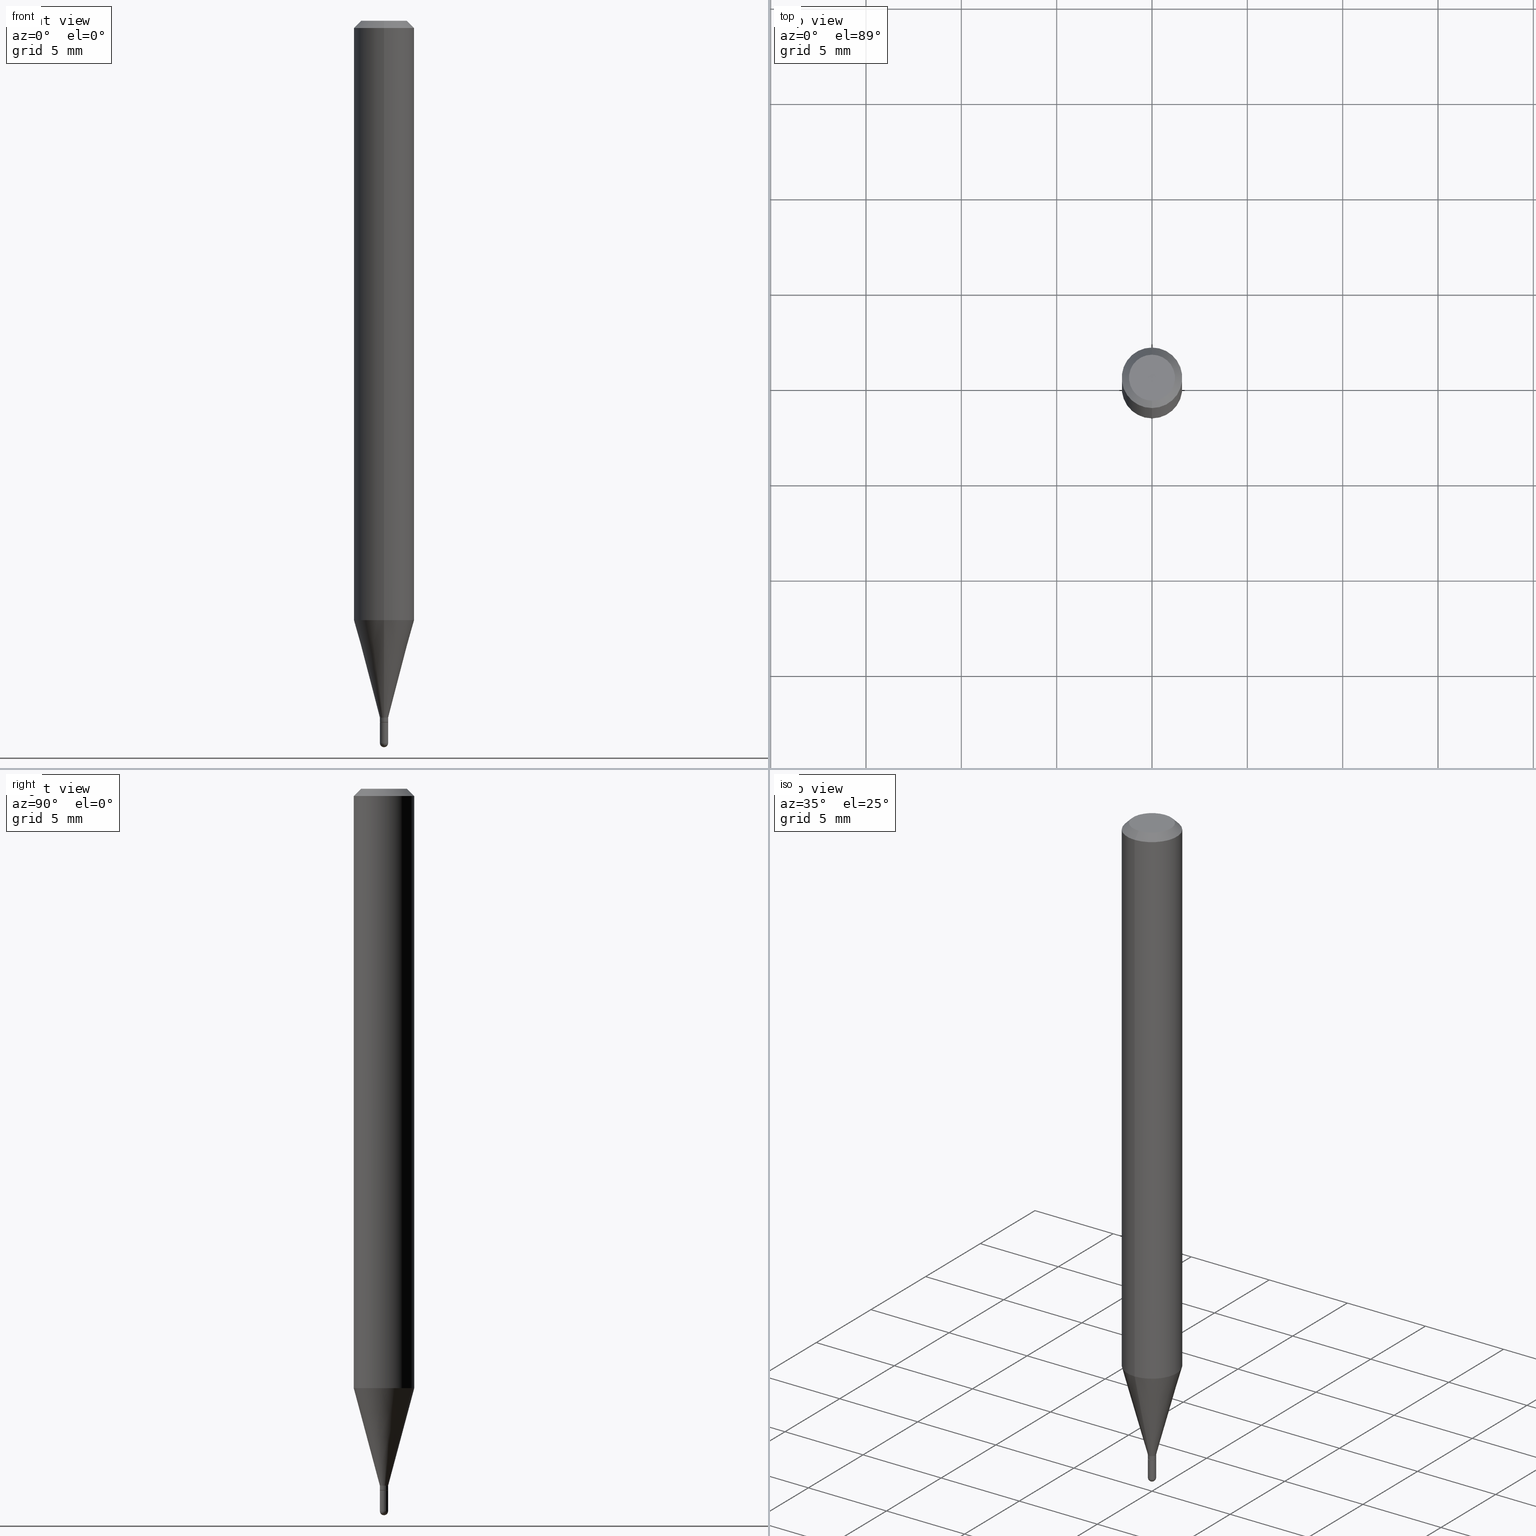
[diagram: canonical four-view strip — front | top / right | iso, engineering-drawing reading convention]
A machine part, canonical four-view strip (front | top / right | iso — engineering-drawing reading convention). The complete STEP part file that produces these views, byte-faithful:
ISO-10303-21;
HEADER;
FILE_DESCRIPTION (( 'STEP AP203' ),
    '1' );
FILE_NAME ('00455.STEP',
    '2024-03-07T17:58:16',
    ( '' ),
    ( '' ),
    'SwSTEP 2.0',
    'SolidWorks 2023',
    '' );
FILE_SCHEMA (( 'CONFIG_CONTROL_DESIGN' ));
ENDSEC;

DATA;
#1 = DIRECTION ( 'NONE',  ( 1.000000000000000000, -6.982962677686273021E-15, 0.000000000000000000 ) ) ;
#2 = FACE_OUTER_BOUND ( 'NONE', #247, .T. ) ;
#3 = EDGE_CURVE ( 'NONE', #413, #62, #56, .T. ) ;
#4 = AXIS2_PLACEMENT_3D ( 'NONE', #403, #445, #324 ) ;
#5 = DIRECTION ( 'NONE',  ( 6.982962677686265922E-15, 1.000000000000000000, 0.000000000000000000 ) ) ;
#6 = VECTOR ( 'NONE', #352, 39.37007874015748143 ) ;
#7 = CARTESIAN_POINT ( 'NONE',  ( 3.668199331857008749E-31, -5.237227560951850416E-17, -0.01500000000000000812 ) ) ;
#8 = DIRECTION ( 'NONE',  ( 1.000000000000000000, -6.982962677686265922E-15, 4.876176775795935232E-29 ) ) ;
#9 = DIRECTION ( 'NONE',  ( -2.445466221238004256E-29, 3.491485040634565202E-15, 1.000000000000000000 ) ) ;
#10 = SECURITY_CLASSIFICATION ( '', '', #507 ) ;
#11 = CYLINDRICAL_SURFACE ( 'NONE', #224, 0.008499999999999924283 ) ;
#12 = ORIENTED_EDGE ( 'NONE', *, *, #476, .T. ) ;
#13 = CARTESIAN_POINT ( 'NONE',  ( -5.935518276029754545E-17, -0.008500000000004949777, -1.439000000000000057 ) ) ;
#14 = CIRCLE ( 'NONE', #309, 0.008499999999999964181 ) ;
#15 = ORIENTED_EDGE ( 'NONE', *, *, #80, .T. ) ;
#16 = FACE_OUTER_BOUND ( 'NONE', #279, .T. ) ;
#17 = EDGE_LOOP ( 'NONE', ( #333, #51, #376, #87 ) ) ;
#18 = AXIS2_PLACEMENT_3D ( 'NONE', #292, #449, #201 ) ;
#19 = VERTEX_POINT ( 'NONE', #31 ) ;
#20 = DIRECTION ( 'NONE',  ( 1.839019923739601893E-15, 0.2588190451025252359, 0.9659258262890670910 ) ) ;
#21 = ORIENTED_EDGE ( 'NONE', *, *, #307, .T. ) ;
#22 = DIRECTION ( 'NONE',  ( -6.982962677686265922E-15, -1.000000000000000000, 4.370956789862821150E-15 ) ) ;
#23 = VERTEX_POINT ( 'NONE', #34 ) ;
#24 = DIRECTION ( 'NONE',  ( 1.000000000000000000, -6.982962677686273021E-15, 0.000000000000000000 ) ) ;
#25 = DATE_AND_TIME ( #186, #193 ) ;
#26 = EDGE_CURVE ( 'NONE', #489, #290, #323, .T. ) ;
#27 = CARTESIAN_POINT ( 'NONE',  ( 3.543480554573868941E-29, -5.059161823879485818E-15, -1.449000000000000066 ) ) ;
#28 = DIRECTION ( 'NONE',  ( 1.000000000000000000, 0.000000000000000000, 0.000000000000000000 ) ) ;
#29 = VECTOR ( 'NONE', #397, 39.37007874015748143 ) ;
#30 = CC_DESIGN_PERSON_AND_ORGANIZATION_ASSIGNMENT ( #346, #306, ( #390 ) ) ;
#31 = CARTESIAN_POINT ( 'NONE',  ( 0.008500000000000000611, -5.118511642744051990E-15, -1.449000000000000066 ) ) ;
#32 = EDGE_CURVE ( 'NONE', #132, #339, #359, .T. ) ;
#33 = ORIENTED_EDGE ( 'NONE', *, *, #463, .T. ) ;
#34 = CARTESIAN_POINT ( 'NONE',  ( -5.935518276029752079E-17, -0.008500000000005010492, -1.448500000000000121 ) ) ;
#35 = MECHANICAL_CONTEXT ( 'NONE', #440, 'mechanical' ) ;
#36 = COORDINATED_UNIVERSAL_TIME_OFFSET ( 5, 0, .BEHIND. ) ;
#37 = CC_DESIGN_APPROVAL ( #281, ( #319 ) ) ;
#38 = CARTESIAN_POINT ( 'NONE',  ( 3.668199331857008749E-31, -5.237227560951850416E-17, -0.01500000000000000812 ) ) ;
#39 = ADVANCED_BREP_SHAPE_REPRESENTATION ( '00455', ( #313, #137, #334 ), #457 ) ;
#40 = DIRECTION ( 'NONE',  ( 2.445466221238004256E-29, -3.491485040634565202E-15, -1.000000000000000000 ) ) ;
#41 = AXIS2_PLACEMENT_3D ( 'NONE', #415, #426, #383 ) ;
#42 = ADVANCED_FACE ( 'NONE', ( #138 ), #453, .F. ) ;
#43 = CARTESIAN_POINT ( 'NONE',  ( 3.543480554573868941E-29, -5.059161823879485818E-15, -1.449000000000000066 ) ) ;
#44 = CC_DESIGN_PERSON_AND_ORGANIZATION_ASSIGNMENT ( #218, #380, ( #10 ) ) ;
#45 = ADVANCED_FACE ( 'NONE', ( #377 ), #458, .T. ) ;
#46 = CARTESIAN_POINT ( 'NONE',  ( 3.647416724425131194E-29, -5.207544416884551827E-15, -1.491500000000000270 ) ) ;
#47 = SPHERICAL_SURFACE ( 'NONE', #363, 0.008499999999999964181 ) ;
#48 = LINE ( 'NONE', #442, #325 ) ;
#49 = CARTESIAN_POINT ( 'NONE',  ( 3.668199331857008749E-31, -5.237227560951850416E-17, -0.01500000000000000812 ) ) ;
#50 = AXIS2_PLACEMENT_3D ( 'NONE', #503, #65, #460 ) ;
#51 = ORIENTED_EDGE ( 'NONE', *, *, #239, .T. ) ;
#52 = CARTESIAN_POINT ( 'NONE',  ( -6.039613253957192439E-17, -0.008500000000005190903, -1.491500000000000270 ) ) ;
#53 = ORIENTED_EDGE ( 'NONE', *, *, #58, .F. ) ;
#54 = UNCERTAINTY_MEASURE_WITH_UNIT (LENGTH_MEASURE( 1.000000000000000082E-05 ), #500, 'distance_accuracy_value', 'NONE');
#55 = FACE_OUTER_BOUND ( 'NONE', #17, .T. ) ;
#56 = CIRCLE ( 'NONE', #41, 0.008499999999999924283 ) ;
#57 = ORIENTED_EDGE ( 'NONE', *, *, #478, .F. ) ;
#58 = EDGE_CURVE ( 'NONE', #132, #375, #244, .T. ) ;
#59 = ORIENTED_EDGE ( 'NONE', *, *, #58, .T. ) ;
#60 = PLANE ( 'NONE',  #407 ) ;
#61 = EDGE_CURVE ( 'NONE', #381, #253, #474, .T. ) ;
#62 = VERTEX_POINT ( 'NONE', #90 ) ;
#63 = CIRCLE ( 'NONE', #372, 0.008000000000000000167 ) ;
#64 = ORIENTED_EDGE ( 'NONE', *, *, #298, .T. ) ;
#65 = DIRECTION ( 'NONE',  ( -2.445466221238004256E-29, 3.491485040634565202E-15, 1.000000000000000000 ) ) ;
#66 = CALENDAR_DATE ( 2024, 7, 3 ) ;
#67 = EDGE_CURVE ( 'NONE', #245, #19, #414, .T. ) ;
#68 = CARTESIAN_POINT ( 'NONE',  ( 6.039613253964316839E-17, 0.008499999999994900524, -1.439000000000000057 ) ) ;
#69 = CIRCLE ( 'NONE', #392, 0.008499999999999924283 ) ;
#70 = ORIENTED_EDGE ( 'NONE', *, *, #255, .T. ) ;
#71 = CALENDAR_DATE ( 2024, 7, 3 ) ;
#72 = VECTOR ( 'NONE', #304, 39.37007874015748143 ) ;
#73 = PERSON_AND_ORGANIZATION ( #111, #418 ) ;
#74 = FACE_OUTER_BOUND ( 'NONE', #385, .T. ) ;
#75 = CIRCLE ( 'NONE', #187, 0.008499999999999924283 ) ;
#76 = AXIS2_PLACEMENT_3D ( 'NONE', #196, #439, #396 ) ;
#77 = FACE_OUTER_BOUND ( 'NONE', #336, .T. ) ;
#78 = CARTESIAN_POINT ( 'NONE',  ( 3.543480554573868941E-29, -5.059161823879485818E-15, -1.449000000000000066 ) ) ;
#79 = EDGE_CURVE ( 'NONE', #347, #496, #219, .T. ) ;
#80 = EDGE_CURVE ( 'NONE', #62, #413, #69, .T. ) ;
#81 = DIRECTION ( 'NONE',  ( 2.445466221238004256E-29, -3.491485040634565202E-15, -1.000000000000000000 ) ) ;
#82 = CIRCLE ( 'NONE', #356, 0.008500000000000002345 ) ;
#83 = CARTESIAN_POINT ( 'NONE',  ( 3.646689833079329078E-29, -5.208585366663827303E-15, -1.491500000000000270 ) ) ;
#84 = LOCAL_TIME ( 12, 58, 16.00000000000000000, #483 ) ;
#85 = PLANE ( 'NONE',  #18 ) ;
#86 = DIRECTION ( 'NONE',  ( -2.445466221238004256E-29, 3.491485040634565202E-15, 1.000000000000000000 ) ) ;
#87 = ORIENTED_EDGE ( 'NONE', *, *, #166, .F. ) ;
#88 = DIRECTION ( 'NONE',  ( -6.982962677686266711E-15, -1.000000000000000000, 0.000000000000000000 ) ) ;
#89 = ORIENTED_EDGE ( 'NONE', *, *, #79, .F. ) ;
#90 = CARTESIAN_POINT ( 'NONE',  ( -5.935518276029754545E-17, -0.008500000000004949777, -1.439000000000000057 ) ) ;
#91 = CARTESIAN_POINT ( 'NONE',  ( 6.039613253964319304E-17, 0.008499999999994839808, -1.448500000000000121 ) ) ;
#92 = AXIS2_PLACEMENT_3D ( 'NONE', #484, #121, #8 ) ;
#93 = ORIENTED_EDGE ( 'NONE', *, *, #485, .F. ) ;
#94 = DIRECTION ( 'NONE',  ( -2.445466221238004256E-29, 3.491485040634565202E-15, 1.000000000000000000 ) ) ;
#95 = ORIENTED_EDGE ( 'NONE', *, *, #411, .T. ) ;
#96 = APPROVAL ( #477, 'UNSPECIFIED' ) ;
#97 = ADVANCED_FACE ( 'NONE', ( #284 ), #233, .T. ) ;
#98 = DIRECTION ( 'NONE',  ( -4.851104656540964275E-15, -0.7071067811865500152, -0.7071067811865450192 ) ) ;
#99 = EDGE_LOOP ( 'NONE', ( #424, #168 ) ) ;
#100 = ORIENTED_EDGE ( 'NONE', *, *, #269, .F. ) ;
#101 = CARTESIAN_POINT ( 'NONE',  ( -3.773273898774340269E-16, -0.04749999999999999362, 1.569853956734031529E-16 ) ) ;
#102 =( NAMED_UNIT ( * ) PLANE_ANGLE_UNIT ( ) SI_UNIT ( $, .RADIAN. ) );
#103 = LOCAL_TIME ( 12, 58, 16.00000000000000000, #36 ) ;
#104 = CARTESIAN_POINT ( 'NONE',  ( 0.000000000000000000, 0.000000000000000000, 0.000000000000000000 ) ) ;
#105 = EDGE_LOOP ( 'NONE', ( #402, #145, #155, #297 ) ) ;
#106 = DIRECTION ( 'NONE',  ( -2.445466221238004256E-29, 3.491485040634565202E-15, 1.000000000000000000 ) ) ;
#107 =( NAMED_UNIT ( * ) SI_UNIT ( $, .STERADIAN. ) SOLID_ANGLE_UNIT ( ) );
#108 = AXIS2_PLACEMENT_3D ( 'NONE', #248, #151, #475 ) ;
#109 = DATE_AND_TIME ( #510, #305 ) ;
#110 = CC_DESIGN_APPROVAL ( #131, ( #390 ) ) ;
#111 = PERSON ( 'UNSPECIFIED', 'UNSPECIFIED', 'UNSPECIFIED', ('UNSPECIFIED'), ('UNSPECIFIED'), ('UNSPECIFIED') ) ;
#112 = CC_DESIGN_DATE_AND_TIME_ASSIGNMENT ( #109, #461, ( #10 ) ) ;
#113 = DIRECTION ( 'NONE',  ( -2.445466221238004536E-29, 3.491485040634565202E-15, 1.000000000000000000 ) ) ;
#114 = AXIS2_PLACEMENT_3D ( 'NONE', #295, #291, #254 ) ;
#115 = CARTESIAN_POINT ( 'NONE',  ( 3.519025892361488226E-29, -5.024246973473140091E-15, -1.439000000000000057 ) ) ;
#116 = CARTESIAN_POINT ( 'NONE',  ( -4.364351673553912750E-16, -0.06250000000000005551, -0.01499999999999979128 ) ) ;
#117 = ORIENTED_EDGE ( 'NONE', *, *, #32, .T. ) ;
#118 = FACE_OUTER_BOUND ( 'NONE', #365, .T. ) ;
#119 = DIRECTION ( 'NONE',  ( -2.445468806185136597E-29, 3.491481338843145583E-15, 1.000000000000000000 ) ) ;
#120 = AXIS2_PLACEMENT_3D ( 'NONE', #167, #252, #326 ) ;
#121 = DIRECTION ( 'NONE',  ( -2.445468806185136597E-29, 3.491481338843145583E-15, 1.000000000000000000 ) ) ;
#122 = CALENDAR_DATE ( 2024, 7, 3 ) ;
#123 = CARTESIAN_POINT ( 'NONE',  ( 3.840629472727447874E-16, 0.04749999999999999362, -1.747056831868805383E-16 ) ) ;
#124 = ORIENTED_EDGE ( 'NONE', *, *, #505, .T. ) ;
#125 = DATE_AND_TIME ( #122, #84 ) ;
#126 = AXIS2_PLACEMENT_3D ( 'NONE', #104, #86, #173 ) ;
#127 = DIRECTION ( 'NONE',  ( -6.982962677686266711E-15, -1.000000000000000000, 3.491485040634565991E-15 ) ) ;
#128 = ORIENTED_EDGE ( 'NONE', *, *, #149, .T. ) ;
#129 = CARTESIAN_POINT ( 'NONE',  ( 4.440892098500927901E-16, 0.06249999999999569095, -1.237469256391281691 ) ) ;
#130 = AXIS2_PLACEMENT_3D ( 'NONE', #499, #183, #429 ) ;
#131 = APPROVAL ( #465, 'UNSPECIFIED' ) ;
#132 = VERTEX_POINT ( 'NONE', #230 ) ;
#133 = EDGE_CURVE ( 'NONE', #347, #381, #472, .T. ) ;
#134 = ORIENTED_EDGE ( 'NONE', *, *, #133, .F. ) ;
#135 = CARTESIAN_POINT ( 'NONE',  ( -4.287811248607203282E-16, -0.06250000000000005551, -0.01499999999999979128 ) ) ;
#136 = EDGE_LOOP ( 'NONE', ( #15, #33, #409, #481 ) ) ;
#137 = MANIFOLD_SOLID_BREP ( 'Body-Move/Copy2[2]', #181 ) ;
#138 = FACE_OUTER_BOUND ( 'NONE', #502, .T. ) ;
#139 = ORIENTED_EDGE ( 'NONE', *, *, #354, .F. ) ;
#140 = DIRECTION ( 'NONE',  ( -2.445468806185136597E-29, 3.491481338843145583E-15, 1.000000000000000000 ) ) ;
#141 = PERSON_AND_ORGANIZATION ( #111, #418 ) ;
#142 = FACE_OUTER_BOUND ( 'NONE', #308, .T. ) ;
#143 = PERSON_AND_ORGANIZATION ( #111, #418 ) ;
#144 = AXIS2_PLACEMENT_3D ( 'NONE', #154, #197, #433 ) ;
#145 = ORIENTED_EDGE ( 'NONE', *, *, #387, .T. ) ;
#146 = DIRECTION ( 'NONE',  ( -7.105427357601000281E-15, -1.000000000000000000, 0.000000000000000000 ) ) ;
#147 = COORDINATED_UNIVERSAL_TIME_OFFSET ( 5, 0, .BEHIND. ) ;
#148 = COORDINATED_UNIVERSAL_TIME_OFFSET ( 5, 0, .BEHIND. ) ;
#149 = EDGE_CURVE ( 'NONE', #206, #256, #14, .T. ) ;
#150 = CIRCLE ( 'NONE', #130, 0.008500000000000000611 ) ;
#151 = DIRECTION ( 'NONE',  ( -2.445466221238004256E-29, 3.491485040634565202E-15, 1.000000000000000000 ) ) ;
#152 = DIRECTION ( 'NONE',  ( 4.937700262164548042E-15, 0.7071067811865451302, -0.7071067811865499042 ) ) ;
#153 = VECTOR ( 'NONE', #401, 39.37007874015748143 ) ;
#154 = CARTESIAN_POINT ( 'NONE',  ( 3.646689833079329078E-29, -5.208585366663827303E-15, -1.491500000000000270 ) ) ;
#155 = ORIENTED_EDGE ( 'NONE', *, *, #428, .T. ) ;
#156 = DIRECTION ( 'NONE',  ( -6.982962677686266711E-15, -1.000000000000000000, 0.000000000000000000 ) ) ;
#157 = SHAPE_DEFINITION_REPRESENTATION ( #314, #39 ) ;
#158 = DIRECTION ( 'NONE',  ( 6.982962677686265922E-15, 1.000000000000000000, -3.483106191921935554E-15 ) ) ;
#159 = CONICAL_SURFACE ( 'NONE', #399, 0.06250000000000000000, 0.7853981633974483900 ) ;
#160 = EDGE_CURVE ( 'NONE', #245, #256, #280, .T. ) ;
#161 = DIRECTION ( 'NONE',  ( -2.445466221238004256E-29, 3.491485040634565202E-15, 1.000000000000000000 ) ) ;
#162 = ADVANCED_FACE ( 'NONE', ( #2 ), #232, .T. ) ;
#163 = APPROVAL_PERSON_ORGANIZATION ( #141, #131, #456 ) ;
#164 = ORIENTED_EDGE ( 'NONE', *, *, #166, .T. ) ;
#165 = LINE ( 'NONE', #135, #188 ) ;
#166 = EDGE_CURVE ( 'NONE', #489, #253, #277, .T. ) ;
#167 = CARTESIAN_POINT ( 'NONE',  ( 3.543484300162263247E-29, -5.059156459983718502E-15, -1.449000000000000066 ) ) ;
#168 = ORIENTED_EDGE ( 'NONE', *, *, #269, .T. ) ;
#169 = CONICAL_SURFACE ( 'NONE', #431, 0.06250000000000000000, 0.7853981633974483900 ) ;
#170 = ADVANCED_FACE ( 'NONE', ( #357 ), #47, .T. ) ;
#171 = FACE_OUTER_BOUND ( 'NONE', #180, .T. ) ;
#172 = ORIENTED_EDGE ( 'NONE', *, *, #160, .F. ) ;
#173 = DIRECTION ( 'NONE',  ( -6.982962677686266711E-15, -1.000000000000000000, 3.491485040634565991E-15 ) ) ;
#174 = ORIENTED_EDGE ( 'NONE', *, *, #239, .F. ) ;
#175 = CARTESIAN_POINT ( 'NONE',  ( -5.586370142145469855E-17, -0.008000000000005060355, -1.449000000000000066 ) ) ;
#176 = CIRCLE ( 'NONE', #501, 0.008499999999999924283 ) ;
#177 = EDGE_LOOP ( 'NONE', ( #258, #210, #367, #57 ) ) ;
#178 = ORIENTED_EDGE ( 'NONE', *, *, #389, .T. ) ;
#179 = CARTESIAN_POINT ( 'NONE',  ( 3.542257821463249204E-29, -5.057416081359168650E-15, -1.448500000000000121 ) ) ;
#180 = EDGE_LOOP ( 'NONE', ( #174, #378, #164, #443 ) ) ;
#181 = CLOSED_SHELL ( 'NONE', ( #294, #262, #238, #370, #278, #227, #299, #226, #321, #425, #162, #45 ) ) ;
#182 = DIRECTION ( 'NONE',  ( -6.982962677686265922E-15, -1.000000000000000000, 3.491485040634565202E-15 ) ) ;
#183 = DIRECTION ( 'NONE',  ( -2.445468806185136597E-29, 3.491481338843145583E-15, 1.000000000000000000 ) ) ;
#184 = ORIENTED_EDGE ( 'NONE', *, *, #428, .F. ) ;
#185 = DIRECTION ( 'NONE',  ( 1.000000000000000000, -6.982962677686273021E-15, 0.000000000000000000 ) ) ;
#186 = CALENDAR_DATE ( 2024, 7, 3 ) ;
#187 = AXIS2_PLACEMENT_3D ( 'NONE', #199, #479, #285 ) ;
#188 = VECTOR ( 'NONE', #98, 39.37007874015748143 ) ;
#189 = ORIENTED_EDGE ( 'NONE', *, *, #405, .F. ) ;
#190 = DATE_AND_TIME ( #66, #103 ) ;
#191 = PERSON_AND_ORGANIZATION ( #111, #418 ) ;
#192 = APPROVAL_ROLE ( '' ) ;
#193 = LOCAL_TIME ( 12, 58, 16.00000000000000000, #148 ) ;
#194 = FACE_OUTER_BOUND ( 'NONE', #177, .T. ) ;
#195 = LINE ( 'NONE', #236, #6 ) ;
#196 = CARTESIAN_POINT ( 'NONE',  ( 3.543480554573868941E-29, -5.059161823879485818E-15, -1.449000000000000066 ) ) ;
#197 = DIRECTION ( 'NONE',  ( -1.000000000000000000, 6.982962677686265922E-15, -4.883557194083112340E-29 ) ) ;
#198 = CC_DESIGN_PERSON_AND_ORGANIZATION_ASSIGNMENT ( #143, #266, ( #390 ) ) ;
#199 = CARTESIAN_POINT ( 'NONE',  ( 3.542257821463249204E-29, -5.057416081359168650E-15, -1.448500000000000121 ) ) ;
#200 = ADVANCED_FACE ( 'NONE', ( #274 ), #434, .T. ) ;
#201 = DIRECTION ( 'NONE',  ( 6.982962677686265922E-15, 1.000000000000000000, -3.491485040634565202E-15 ) ) ;
#202 = AXIS2_PLACEMENT_3D ( 'NONE', #344, #140, #185 ) ;
#203 = DIRECTION ( 'NONE',  ( -1.807323732225331717E-15, -0.2588190451025184080, 0.9659258262890689783 ) ) ;
#204 = ORIENTED_EDGE ( 'NONE', *, *, #389, .F. ) ;
#205 = DIRECTION ( 'NONE',  ( -2.445466221238004256E-29, 3.491485040634565202E-15, 1.000000000000000000 ) ) ;
#206 = VERTEX_POINT ( 'NONE', #470 ) ;
#207 = CARTESIAN_POINT ( 'NONE',  ( 3.543480554573868941E-29, -5.059161823879485818E-15, -1.449000000000000066 ) ) ;
#208 = ORIENTED_EDGE ( 'NONE', *, *, #505, .F. ) ;
#209 = CARTESIAN_POINT ( 'NONE',  ( 0.008500000000000002345, -5.935518276033327838E-17, 4.144750259426545879E-31 ) ) ;
#210 = ORIENTED_EDGE ( 'NONE', *, *, #3, .T. ) ;
#211 = CARTESIAN_POINT ( 'NONE',  ( 3.026189266325389991E-29, -4.320605396935337558E-15, -1.237469256391281247 ) ) ;
#212 = LINE ( 'NONE', #374, #72 ) ;
#213 = APPROVAL_PERSON_ORGANIZATION ( #73, #281, #192 ) ;
#214 = ORIENTED_EDGE ( 'NONE', *, *, #32, .F. ) ;
#215 = DIRECTION ( 'NONE',  ( -1.000000000000000000, 6.982962677686265922E-15, -4.876176775795935793E-29 ) ) ;
#216 = ORIENTED_EDGE ( 'NONE', *, *, #80, .F. ) ;
#217 = CARTESIAN_POINT ( 'NONE',  ( 3.647416724425131194E-29, -5.207544416884551827E-15, -1.491500000000000270 ) ) ;
#218 = PERSON_AND_ORGANIZATION ( #111, #418 ) ;
#219 = CIRCLE ( 'NONE', #108, 0.04749999999999999362 ) ;
#220 = CARTESIAN_POINT ( 'NONE',  ( 6.039613253960797780E-17, 0.008499999999999924283, -2.967762284539354498E-17 ) ) ;
#221 = DIRECTION ( 'NONE',  ( 0.000000000000000000, 0.000000000000000000, 1.000000000000000000 ) ) ;
#222 = ORIENTED_EDGE ( 'NONE', *, *, #270, .T. ) ;
#223 = DATE_AND_TIME ( #71, #231 ) ;
#224 = AXIS2_PLACEMENT_3D ( 'NONE', #416, #94, #488 ) ;
#225 = APPROVAL_PERSON_ORGANIZATION ( #228, #96, #444 ) ;
#226 = ADVANCED_FACE ( 'NONE', ( #74 ), #169, .T. ) ;
#227 = ADVANCED_FACE ( 'NONE', ( #194 ), #243, .T. ) ;
#228 = PERSON_AND_ORGANIZATION ( #111, #418 ) ;
#229 = APPLICATION_PROTOCOL_DEFINITION ( 'international standard', 'config_control_design', 1994, #435 ) ;
#230 = CARTESIAN_POINT ( 'NONE',  ( -0.008500000000000002345, -5.072954305894525412E-15, -1.491500000000000270 ) ) ;
#231 = LOCAL_TIME ( 12, 58, 16.00000000000000000, #268 ) ;
#232 = CONICAL_SURFACE ( 'NONE', #76, 0.008000000000000000167, 0.7853981633974739252 ) ;
#233 = CYLINDRICAL_SURFACE ( 'NONE', #437, 0.008500000000000002345 ) ;
#234 = DIRECTION ( 'NONE',  ( -2.445466221238004256E-29, 3.491485040634565202E-15, 1.000000000000000000 ) ) ;
#235 = VECTOR ( 'NONE', #152, 39.37007874015748143 ) ;
#236 = CARTESIAN_POINT ( 'NONE',  ( 4.440892098500625669E-16, 0.06250000000000000000, -2.182178150396603251E-16 ) ) ;
#237 = CIRCLE ( 'NONE', #345, 0.008499999999999964181 ) ;
#238 = ADVANCED_FACE ( 'NONE', ( #77 ), #159, .T. ) ;
#239 = EDGE_CURVE ( 'NONE', #290, #381, #195, .T. ) ;
#240 = DIRECTION ( 'NONE',  ( -6.982962677686266711E-15, -1.000000000000000000, 0.000000000000000000 ) ) ;
#241 = LINE ( 'NONE', #441, #29 ) ;
#242 = AXIS2_PLACEMENT_3D ( 'NONE', #351, #275, #156 ) ;
#243 = CONICAL_SURFACE ( 'NONE', #242, 0.008499999999999924283, 0.2617993877991505181 ) ;
#244 = LINE ( 'NONE', #330, #153 ) ;
#245 = VERTEX_POINT ( 'NONE', #320 ) ;
#246 = DIRECTION ( 'NONE',  ( -4.937700262164674260E-15, -0.7071067811865632269, 0.7071067811865319186 ) ) ;
#247 = EDGE_LOOP ( 'NONE', ( #204, #353, #450, #454 ) ) ;
#248 = CARTESIAN_POINT ( 'NONE',  ( 2.166718227241722488E-46, -3.093505938452482388E-32, -8.860143756738675731E-18 ) ) ;
#249 = AXIS2_PLACEMENT_3D ( 'NONE', #78, #234, #393 ) ;
#250 = CYLINDRICAL_SURFACE ( 'NONE', #406, 0.06250000000000000000 ) ;
#251 = ORIENTED_EDGE ( 'NONE', *, *, #298, .F. ) ;
#252 = DIRECTION ( 'NONE',  ( -2.445468806185136597E-29, 3.491481338843145583E-15, 1.000000000000000000 ) ) ;
#253 = VERTEX_POINT ( 'NONE', #116 ) ;
#254 = DIRECTION ( 'NONE',  ( -6.982962677686265922E-15, -1.000000000000000000, 3.483106191921935554E-15 ) ) ;
#255 = EDGE_CURVE ( 'NONE', #282, #487, #430, .T. ) ;
#256 = VERTEX_POINT ( 'NONE', #473 ) ;
#257 = CARTESIAN_POINT ( 'NONE',  ( 4.440892098500930859E-16, 0.06249999999999995143, -0.01500000000000022669 ) ) ;
#258 = ORIENTED_EDGE ( 'NONE', *, *, #463, .F. ) ;
#259 = CARTESIAN_POINT ( 'NONE',  ( 5.935518276036870316E-17, 0.008499999999994942157, -1.449000000000000066 ) ) ;
#260 = ORIENTED_EDGE ( 'NONE', *, *, #307, .F. ) ;
#261 = CARTESIAN_POINT ( 'NONE',  ( 5.861977570024342171E-17, 0.007999999999994941713, -1.449000000000000066 ) ) ;
#262 = ADVANCED_FACE ( 'NONE', ( #118 ), #350, .T. ) ;
#263 = CIRCLE ( 'NONE', #276, 0.06250000000000000000 ) ;
#264 = APPROVAL_DATE_TIME ( #223, #131 ) ;
#265 = LINE ( 'NONE', #220, #471 ) ;
#266 = PERSON_AND_ORGANIZATION_ROLE ( 'creator' ) ;
#267 = ORIENTED_EDGE ( 'NONE', *, *, #466, .T. ) ;
#268 = COORDINATED_UNIVERSAL_TIME_OFFSET ( 5, 0, .BEHIND. ) ;
#269 = EDGE_CURVE ( 'NONE', #496, #347, #480, .T. ) ;
#270 = EDGE_CURVE ( 'NONE', #253, #381, #263, .T. ) ;
#271 = LENGTH_MEASURE_WITH_UNIT ( LENGTH_MEASURE( 0.02539999999999999897 ), #272 );
#272 =( LENGTH_UNIT ( ) NAMED_UNIT ( * ) SI_UNIT ( $, .METRE. ) );
#273 = CLOSED_SHELL ( 'NONE', ( #97, #170, #42, #200, #340 ) ) ;
#274 = FACE_OUTER_BOUND ( 'NONE', #494, .T. ) ;
#275 = DIRECTION ( 'NONE',  ( -2.445466221238004256E-29, 3.491485040634565202E-15, 1.000000000000000000 ) ) ;
#276 = AXIS2_PLACEMENT_3D ( 'NONE', #49, #286, #482 ) ;
#277 = LINE ( 'NONE', #349, #459 ) ;
#278 = ADVANCED_FACE ( 'NONE', ( #332 ), #448, .T. ) ;
#279 = EDGE_LOOP ( 'NONE', ( #267, #12, #216, #184 ) ) ;
#280 = CIRCLE ( 'NONE', #509, 0.008500000000000002345 ) ;
#281 = APPROVAL ( #302, 'UNSPECIFIED' ) ;
#282 = VERTEX_POINT ( 'NONE', #175 ) ;
#283 = EDGE_CURVE ( 'NONE', #62, #489, #296, .T. ) ;
#284 = FACE_OUTER_BOUND ( 'NONE', #492, .T. ) ;
#285 = DIRECTION ( 'NONE',  ( -6.982962677686266711E-15, -1.000000000000000000, 0.000000000000000000 ) ) ;
#286 = DIRECTION ( 'NONE',  ( -2.445466221238004256E-29, 3.491485040634565202E-15, 1.000000000000000000 ) ) ;
#287 = ORIENTED_EDGE ( 'NONE', *, *, #133, .T. ) ;
#288 = AXIS2_PLACEMENT_3D ( 'NONE', #211, #335, #22 ) ;
#289 = CARTESIAN_POINT ( 'NONE',  ( 3.519025892361488226E-29, -5.024246973473140091E-15, -1.439000000000000057 ) ) ;
#290 = VERTEX_POINT ( 'NONE', #129 ) ;
#291 = DIRECTION ( 'NONE',  ( -2.445466221238004256E-29, 3.491485040634565202E-15, 1.000000000000000000 ) ) ;
#292 = CARTESIAN_POINT ( 'NONE',  ( 3.316907271900976096E-16, 0.04749999999999999362, -1.702756113085111488E-16 ) ) ;
#293 = ORIENTED_EDGE ( 'NONE', *, *, #61, .T. ) ;
#294 = ADVANCED_FACE ( 'NONE', ( #16 ), #11, .T. ) ;
#295 = CARTESIAN_POINT ( 'NONE',  ( 3.668199331857008749E-31, -5.237227560951850416E-17, -0.01500000000000000812 ) ) ;
#296 = LINE ( 'NONE', #13, #362 ) ;
#297 = ORIENTED_EDGE ( 'NONE', *, *, #3, .F. ) ;
#298 = EDGE_CURVE ( 'NONE', #496, #253, #165, .T. ) ;
#299 = ADVANCED_FACE ( 'NONE', ( #171 ), #358, .T. ) ;
#300 = EDGE_LOOP ( 'NONE', ( #53, #117, #95, #506, #420 ) ) ;
#301 = DIRECTION ( 'NONE',  ( -1.000000000000000000, 7.105427357601001070E-15, -4.926315508542082329E-29 ) ) ;
#302 = APPROVAL_STATUS ( 'not_yet_approved' ) ;
#303 = CARTESIAN_POINT ( 'NONE',  ( 3.647416724425131194E-29, -5.207544416884551827E-15, -1.491500000000000270 ) ) ;
#304 = DIRECTION ( 'NONE',  ( -2.445466221238004536E-29, 3.491485040634565202E-15, 1.000000000000000000 ) ) ;
#305 = LOCAL_TIME ( 12, 58, 16.00000000000000000, #147 ) ;
#306 = PERSON_AND_ORGANIZATION_ROLE ( 'design_supplier' ) ;
#307 = EDGE_CURVE ( 'NONE', #19, #375, #490, .T. ) ;
#308 = EDGE_LOOP ( 'NONE', ( #341, #139 ) ) ;
#309 = AXIS2_PLACEMENT_3D ( 'NONE', #83, #312, #5 ) ;
#310 = APPLICATION_PROTOCOL_DEFINITION ( 'international standard', 'config_control_design', 1994, #440 ) ;
#311 = AXIS2_PLACEMENT_3D ( 'NONE', #43, #438, #360 ) ;
#312 = DIRECTION ( 'NONE',  ( 1.000000000000000000, -6.982962677686265922E-15, 4.883557194083112340E-29 ) ) ;
#313 = MANIFOLD_SOLID_BREP ( 'Body-Move/Copy2[1]', #273 ) ;
#314 = PRODUCT_DEFINITION_SHAPE ( 'NONE', 'NONE',  #319 ) ;
#315 = CARTESIAN_POINT ( 'NONE',  ( 3.646689833079329078E-29, -5.208585366663827303E-15, -1.491500000000000270 ) ) ;
#316 = DIRECTION ( 'NONE',  ( -1.000000000000000000, 6.982962677686265922E-15, -4.883557194083112340E-29 ) ) ;
#317 = AXIS2_PLACEMENT_3D ( 'NONE', #369, #364, #127 ) ;
#318 = VERTEX_POINT ( 'NONE', #91 ) ;
#319 = PRODUCT_DEFINITION ( 'UNKNOWN', '', #390, #327 ) ;
#320 = CARTESIAN_POINT ( 'NONE',  ( 0.008500000000000002345, -5.192705621194468652E-15, -1.491500000000000270 ) ) ;
#321 = ADVANCED_FACE ( 'NONE', ( #328 ), #85, .F. ) ;
#322 = DIRECTION ( 'NONE',  ( 1.000000000000000000, -6.982962677686265922E-15, 4.876176775795935232E-29 ) ) ;
#323 = CIRCLE ( 'NONE', #288, 0.06250000000000000000 ) ;
#324 = DIRECTION ( 'NONE',  ( -6.982962677686265922E-15, -1.000000000000000000, 3.491485040634565202E-15 ) ) ;
#325 = VECTOR ( 'NONE', #246, 39.37007874015748143 ) ;
#326 = DIRECTION ( 'NONE',  ( 1.000000000000000000, -6.982962677686274599E-15, 0.000000000000000000 ) ) ;
#327 = DESIGN_CONTEXT ( 'detailed design', #435, 'design' ) ;
#328 = FACE_OUTER_BOUND ( 'NONE', #99, .T. ) ;
#329 = ORIENTED_EDGE ( 'NONE', *, *, #508, .T. ) ;
#330 = CARTESIAN_POINT ( 'NONE',  ( -0.008500000000000002345, 6.039613253960853246E-17, -4.181094826716670944E-31 ) ) ;
#331 = ORIENTED_EDGE ( 'NONE', *, *, #67, .F. ) ;
#332 = FACE_OUTER_BOUND ( 'NONE', #136, .T. ) ;
#333 = ORIENTED_EDGE ( 'NONE', *, *, #26, .T. ) ;
#334 = AXIS2_PLACEMENT_3D ( 'NONE', #423, #221, #28 ) ;
#335 = DIRECTION ( 'NONE',  ( -2.445466221238004256E-29, 3.491485040634565202E-15, 1.000000000000000000 ) ) ;
#336 = EDGE_LOOP ( 'NONE', ( #100, #64, #222, #134 ) ) ;
#337 = CARTESIAN_POINT ( 'NONE',  ( -0.008500000000000000611, -5.072954305894525412E-15, -1.449000000000000066 ) ) ;
#338 = CC_DESIGN_DATE_AND_TIME_ASSIGNMENT ( #190, #498, ( #319 ) ) ;
#339 = VERTEX_POINT ( 'NONE', #52 ) ;
#340 = ADVANCED_FACE ( 'NONE', ( #451 ), #412, .T. ) ;
#341 = ORIENTED_EDGE ( 'NONE', *, *, #255, .F. ) ;
#342 = DIRECTION ( 'NONE',  ( -2.445466221238004536E-29, 3.491485040634565202E-15, 1.000000000000000000 ) ) ;
#343 = CARTESIAN_POINT ( 'NONE',  ( 3.646689833079329078E-29, -5.208585366663827303E-15, -1.491500000000000270 ) ) ;
#344 = CARTESIAN_POINT ( 'NONE',  ( 3.647416724425131194E-29, -5.207544416884551827E-15, -1.491500000000000270 ) ) ;
#345 = AXIS2_PLACEMENT_3D ( 'NONE', #343, #301, #146 ) ;
#346 = PERSON_AND_ORGANIZATION ( #111, #418 ) ;
#347 = VERTEX_POINT ( 'NONE', #123 ) ;
#348 = PERSON_AND_ORGANIZATION_ROLE ( 'design_owner' ) ;
#349 = CARTESIAN_POINT ( 'NONE',  ( -4.364351673553916201E-16, -0.06250000000000000000, 2.182178150396603251E-16 ) ) ;
#350 = CONICAL_SURFACE ( 'NONE', #311, 0.008000000000000000167, 0.7853981633974739252 ) ;
#351 = CARTESIAN_POINT ( 'NONE',  ( 3.519025892361488226E-29, -5.024246973473140091E-15, -1.439000000000000057 ) ) ;
#352 = DIRECTION ( 'NONE',  ( -2.445466221238004536E-29, 3.491485040634565202E-15, 1.000000000000000000 ) ) ;
#353 = ORIENTED_EDGE ( 'NONE', *, *, #354, .T. ) ;
#354 = EDGE_CURVE ( 'NONE', #487, #282, #63, .T. ) ;
#355 = DIRECTION ( 'NONE',  ( 6.982962677686265922E-15, 1.000000000000000000, 0.000000000000000000 ) ) ;
#356 = AXIS2_PLACEMENT_3D ( 'NONE', #217, #379, #24 ) ;
#357 = FACE_OUTER_BOUND ( 'NONE', #404, .T. ) ;
#358 = CYLINDRICAL_SURFACE ( 'NONE', #4, 0.06250000000000000000 ) ;
#359 = CIRCLE ( 'NONE', #464, 0.008500000000000002345 ) ;
#360 = DIRECTION ( 'NONE',  ( -6.982962677686266711E-15, -1.000000000000000000, 0.000000000000000000 ) ) ;
#361 = DIRECTION ( 'NONE',  ( -2.445468806185136877E-29, 3.491481338843145188E-15, 1.000000000000000000 ) ) ;
#362 = VECTOR ( 'NONE', #203, 39.37007874015748854 ) ;
#363 = AXIS2_PLACEMENT_3D ( 'NONE', #315, #316, #355 ) ;
#364 = DIRECTION ( 'NONE',  ( -2.445466221238004256E-29, 3.491485040634565202E-15, 1.000000000000000000 ) ) ;
#365 = EDGE_LOOP ( 'NONE', ( #70, #178, #417, #189 ) ) ;
#366 = DIRECTION ( 'NONE',  ( -6.982962677686265922E-15, -1.000000000000000000, 3.491485040634565202E-15 ) ) ;
#367 = ORIENTED_EDGE ( 'NONE', *, *, #283, .T. ) ;
#368 = CC_DESIGN_PERSON_AND_ORGANIZATION_ASSIGNMENT ( #388, #462, ( #319 ) ) ;
#369 = CARTESIAN_POINT ( 'NONE',  ( 2.166718227241722488E-46, -3.093505938452482388E-32, -8.860143756738675731E-18 ) ) ;
#370 = ADVANCED_FACE ( 'NONE', ( #55 ), #250, .T. ) ;
#371 = ORIENTED_EDGE ( 'NONE', *, *, #411, .F. ) ;
#372 = AXIS2_PLACEMENT_3D ( 'NONE', #207, #161, #88 ) ;
#373 = CC_DESIGN_APPROVAL ( #96, ( #10 ) ) ;
#374 = CARTESIAN_POINT ( 'NONE',  ( -5.935518276033273604E-17, -0.008499999999999924283, 2.967762284539354498E-17 ) ) ;
#375 = VERTEX_POINT ( 'NONE', #337 ) ;
#376 = ORIENTED_EDGE ( 'NONE', *, *, #270, .F. ) ;
#377 = FACE_OUTER_BOUND ( 'NONE', #105, .T. ) ;
#378 = ORIENTED_EDGE ( 'NONE', *, *, #478, .T. ) ;
#379 = DIRECTION ( 'NONE',  ( -2.445468806185136597E-29, 3.491481338843145583E-15, 1.000000000000000000 ) ) ;
#380 = PERSON_AND_ORGANIZATION_ROLE ( 'classification_officer' ) ;
#381 = VERTEX_POINT ( 'NONE', #257 ) ;
#382 = LINE ( 'NONE', #68, #395 ) ;
#383 = DIRECTION ( 'NONE',  ( -6.982962677686266711E-15, -1.000000000000000000, 0.000000000000000000 ) ) ;
#384 = CIRCLE ( 'NONE', #202, 0.008500000000000002345 ) ;
#385 = EDGE_LOOP ( 'NONE', ( #251, #89, #287, #293 ) ) ;
#386 = PRODUCT ( '00455', '00455', '', ( #35 ) ) ;
#387 = EDGE_CURVE ( 'NONE', #318, #23, #75, .T. ) ;
#388 = PERSON_AND_ORGANIZATION ( #111, #418 ) ;
#389 = EDGE_CURVE ( 'NONE', #487, #318, #241, .T. ) ;
#390 = PRODUCT_DEFINITION_FORMATION_WITH_SPECIFIED_SOURCE ( 'ANY', '', #386, .NOT_KNOWN. ) ;
#391 = CARTESIAN_POINT ( 'NONE',  ( 4.364351673553919652E-16, 0.06249999999999995143, -0.01500000000000022669 ) ) ;
#392 = AXIS2_PLACEMENT_3D ( 'NONE', #115, #394, #240 ) ;
#393 = DIRECTION ( 'NONE',  ( -6.982962677686266711E-15, -1.000000000000000000, 0.000000000000000000 ) ) ;
#394 = DIRECTION ( 'NONE',  ( -2.445466221238004256E-29, 3.491485040634565202E-15, 1.000000000000000000 ) ) ;
#395 = VECTOR ( 'NONE', #20, 39.37007874015748854 ) ;
#396 = DIRECTION ( 'NONE',  ( -6.982962677686266711E-15, -1.000000000000000000, 0.000000000000000000 ) ) ;
#397 = DIRECTION ( 'NONE',  ( 5.024295867788190974E-15, 0.7071067811865681119, 0.7071067811865270336 ) ) ;
#398 = VECTOR ( 'NONE', #361, 39.37007874015748143 ) ;
#399 = AXIS2_PLACEMENT_3D ( 'NONE', #38, #40, #158 ) ;
#400 = APPROVAL_DATE_TIME ( #125, #96 ) ;
#401 = DIRECTION ( 'NONE',  ( -2.445468806185136877E-29, 3.491481338843145188E-15, 1.000000000000000000 ) ) ;
#402 = ORIENTED_EDGE ( 'NONE', *, *, #476, .F. ) ;
#403 = CARTESIAN_POINT ( 'NONE',  ( 0.000000000000000000, 0.000000000000000000, 0.000000000000000000 ) ) ;
#404 = EDGE_LOOP ( 'NONE', ( #447, #452, #214, #208 ) ) ;
#405 = EDGE_CURVE ( 'NONE', #282, #23, #48, .T. ) ;
#406 = AXIS2_PLACEMENT_3D ( 'NONE', #408, #205, #366 ) ;
#407 = AXIS2_PLACEMENT_3D ( 'NONE', #27, #497, #182 ) ;
#408 = CARTESIAN_POINT ( 'NONE',  ( 0.000000000000000000, 0.000000000000000000, 0.000000000000000000 ) ) ;
#409 = ORIENTED_EDGE ( 'NONE', *, *, #26, .F. ) ;
#410 = CC_DESIGN_PERSON_AND_ORGANIZATION_ASSIGNMENT ( #191, #348, ( #386 ) ) ;
#411 = EDGE_CURVE ( 'NONE', #339, #245, #384, .T. ) ;
#412 = CYLINDRICAL_SURFACE ( 'NONE', #92, 0.008500000000000002345 ) ;
#413 = VERTEX_POINT ( 'NONE', #422 ) ;
#414 = LINE ( 'NONE', #209, #398 ) ;
#415 = CARTESIAN_POINT ( 'NONE',  ( 3.519025892361488226E-29, -5.024246973473140091E-15, -1.439000000000000057 ) ) ;
#416 = CARTESIAN_POINT ( 'NONE',  ( 0.000000000000000000, 0.000000000000000000, 0.000000000000000000 ) ) ;
#417 = ORIENTED_EDGE ( 'NONE', *, *, #466, .F. ) ;
#418 = ORGANIZATION ( 'UNSPECIFIED', 'UNSPECIFIED', '' ) ;
#419 = DIRECTION ( 'NONE',  ( 2.438088387897960049E-29, -3.491481338843145188E-15, -1.000000000000000000 ) ) ;
#420 = ORIENTED_EDGE ( 'NONE', *, *, #508, .F. ) ;
#421 = DIRECTION ( 'NONE',  ( -6.982962677686266711E-15, -1.000000000000000000, 0.000000000000000000 ) ) ;
#422 = CARTESIAN_POINT ( 'NONE',  ( 2.522426711948681826E-16, 0.008499999999994900524, -1.439000000000000057 ) ) ;
#423 = CARTESIAN_POINT ( 'NONE',  ( 0.000000000000000000, 0.000000000000000000, 0.000000000000000000 ) ) ;
#424 = ORIENTED_EDGE ( 'NONE', *, *, #79, .T. ) ;
#425 = ADVANCED_FACE ( 'NONE', ( #142 ), #60, .F. ) ;
#426 = DIRECTION ( 'NONE',  ( -2.445466221238004256E-29, 3.491485040634565202E-15, 1.000000000000000000 ) ) ;
#427 = CC_DESIGN_SECURITY_CLASSIFICATION ( #10, ( #390 ) ) ;
#428 = EDGE_CURVE ( 'NONE', #23, #62, #212, .T. ) ;
#429 = DIRECTION ( 'NONE',  ( 1.000000000000000000, -6.982962677686274599E-15, 0.000000000000000000 ) ) ;
#430 = CIRCLE ( 'NONE', #249, 0.008000000000000000167 ) ;
#431 = AXIS2_PLACEMENT_3D ( 'NONE', #7, #81, #436 ) ;
#432 = AXIS2_PLACEMENT_3D ( 'NONE', #259, #419, #215 ) ;
#433 = DIRECTION ( 'NONE',  ( 6.982962677686265922E-15, 1.000000000000000000, 0.000000000000000000 ) ) ;
#434 = SPHERICAL_SURFACE ( 'NONE', #144, 0.008499999999999964181 ) ;
#435 = APPLICATION_CONTEXT ( 'configuration controlled 3d designs of mechanical parts and assemblies' ) ;
#436 = DIRECTION ( 'NONE',  ( 6.982962677686265922E-15, 1.000000000000000000, -3.483106191921935554E-15 ) ) ;
#437 = AXIS2_PLACEMENT_3D ( 'NONE', #512, #119, #322 ) ;
#438 = DIRECTION ( 'NONE',  ( -2.445466221238004256E-29, 3.491485040634565202E-15, 1.000000000000000000 ) ) ;
#439 = DIRECTION ( 'NONE',  ( -2.445466221238004256E-29, 3.491485040634565202E-15, 1.000000000000000000 ) ) ;
#440 = APPLICATION_CONTEXT ( 'configuration controlled 3d designs of mechanical parts and assemblies' ) ;
#441 = CARTESIAN_POINT ( 'NONE',  ( 5.684341886084344084E-17, 0.007999999999994941713, -1.449000000000000066 ) ) ;
#442 = CARTESIAN_POINT ( 'NONE',  ( -5.586370142145469855E-17, -0.008000000000005060355, -1.449000000000000066 ) ) ;
#443 = ORIENTED_EDGE ( 'NONE', *, *, #61, .F. ) ;
#444 = APPROVAL_ROLE ( '' ) ;
#445 = DIRECTION ( 'NONE',  ( -2.445466221238004256E-29, 3.491485040634565202E-15, 1.000000000000000000 ) ) ;
#446 = PRODUCT_RELATED_PRODUCT_CATEGORY ( 'detail', '', ( #386 ) ) ;
#447 = ORIENTED_EDGE ( 'NONE', *, *, #149, .F. ) ;
#448 = CONICAL_SURFACE ( 'NONE', #511, 0.008499999999999924283, 0.2617993877991505181 ) ;
#449 = DIRECTION ( 'NONE',  ( 2.445466221238003976E-29, -3.491485040634565202E-15, -1.000000000000000000 ) ) ;
#450 = ORIENTED_EDGE ( 'NONE', *, *, #405, .T. ) ;
#451 = FACE_OUTER_BOUND ( 'NONE', #300, .T. ) ;
#452 = ORIENTED_EDGE ( 'NONE', *, *, #485, .T. ) ;
#453 = PLANE ( 'NONE',  #432 ) ;
#454 = ORIENTED_EDGE ( 'NONE', *, *, #387, .F. ) ;
#455 = CARTESIAN_POINT ( 'NONE',  ( -4.364351673553615448E-16, -0.06250000000000432987, -1.237469256391281025 ) ) ;
#456 = APPROVAL_ROLE ( '' ) ;
#457 =( GEOMETRIC_REPRESENTATION_CONTEXT ( 3 ) GLOBAL_UNCERTAINTY_ASSIGNED_CONTEXT ( ( #54 ) ) GLOBAL_UNIT_ASSIGNED_CONTEXT ( ( #500, #102, #107 ) ) REPRESENTATION_CONTEXT ( 'NONE', 'WORKASPACE' ) );
#458 = CYLINDRICAL_SURFACE ( 'NONE', #126, 0.008499999999999924283 ) ;
#459 = VECTOR ( 'NONE', #113, 39.37007874015748143 ) ;
#460 = DIRECTION ( 'NONE',  ( -6.982962677686265922E-15, -1.000000000000000000, 4.370956789862821150E-15 ) ) ;
#461 = DATE_TIME_ROLE ( 'classification_date' ) ;
#462 = PERSON_AND_ORGANIZATION_ROLE ( 'creator' ) ;
#463 = EDGE_CURVE ( 'NONE', #413, #290, #382, .T. ) ;
#464 = AXIS2_PLACEMENT_3D ( 'NONE', #303, #491, #495 ) ;
#465 = APPROVAL_STATUS ( 'not_yet_approved' ) ;
#466 = EDGE_CURVE ( 'NONE', #23, #318, #176, .T. ) ;
#467 = CIRCLE ( 'NONE', #50, 0.06250000000000000000 ) ;
#468 = APPROVAL_DATE_TIME ( #25, #281 ) ;
#469 = DIRECTION ( 'NONE',  ( -2.445468806185136597E-29, 3.491481338843145583E-15, 1.000000000000000000 ) ) ;
#470 = CARTESIAN_POINT ( 'NONE',  ( 3.667839763604803277E-29, -5.237742483154356704E-15, -1.500000000000000222 ) ) ;
#471 = VECTOR ( 'NONE', #342, 39.37007874015748143 ) ;
#472 = LINE ( 'NONE', #391, #235 ) ;
#473 = CARTESIAN_POINT ( 'NONE',  ( 5.935518276036960296E-17, 0.008499999999994775624, -1.491500000000000270 ) ) ;
#474 = CIRCLE ( 'NONE', #114, 0.06250000000000000000 ) ;
#475 = DIRECTION ( 'NONE',  ( -6.982962677686266711E-15, -1.000000000000000000, 3.491485040634565991E-15 ) ) ;
#476 = EDGE_CURVE ( 'NONE', #318, #413, #265, .T. ) ;
#477 = APPROVAL_STATUS ( 'not_yet_approved' ) ;
#478 = EDGE_CURVE ( 'NONE', #290, #489, #467, .T. ) ;
#479 = DIRECTION ( 'NONE',  ( -2.445466221238004256E-29, 3.491485040634565202E-15, 1.000000000000000000 ) ) ;
#480 = CIRCLE ( 'NONE', #317, 0.04749999999999999362 ) ;
#481 = ORIENTED_EDGE ( 'NONE', *, *, #283, .F. ) ;
#482 = DIRECTION ( 'NONE',  ( -6.982962677686265922E-15, -1.000000000000000000, 3.483106191921935554E-15 ) ) ;
#483 = COORDINATED_UNIVERSAL_TIME_OFFSET ( 5, 0, .BEHIND. ) ;
#484 = CARTESIAN_POINT ( 'NONE',  ( 0.000000000000000000, 0.000000000000000000, 0.000000000000000000 ) ) ;
#485 = EDGE_CURVE ( 'NONE', #206, #339, #237, .T. ) ;
#486 = ORIENTED_EDGE ( 'NONE', *, *, #160, .T. ) ;
#487 = VERTEX_POINT ( 'NONE', #261 ) ;
#488 = DIRECTION ( 'NONE',  ( -6.982962677686266711E-15, -1.000000000000000000, 3.491485040634565991E-15 ) ) ;
#489 = VERTEX_POINT ( 'NONE', #455 ) ;
#490 = CIRCLE ( 'NONE', #120, 0.008500000000000000611 ) ;
#491 = DIRECTION ( 'NONE',  ( -2.445468806185136597E-29, 3.491481338843145583E-15, 1.000000000000000000 ) ) ;
#492 = EDGE_LOOP ( 'NONE', ( #124, #59, #260, #331, #486 ) ) ;
#493 = DIRECTION ( 'NONE',  ( -6.982962677686266711E-15, -1.000000000000000000, 0.000000000000000000 ) ) ;
#494 = EDGE_LOOP ( 'NONE', ( #93, #128, #172, #371 ) ) ;
#495 = DIRECTION ( 'NONE',  ( 1.000000000000000000, -6.982962677686273021E-15, 0.000000000000000000 ) ) ;
#496 = VERTEX_POINT ( 'NONE', #101 ) ;
#497 = DIRECTION ( 'NONE',  ( -2.445466221238003976E-29, 3.491485040634565202E-15, 1.000000000000000000 ) ) ;
#498 = DATE_TIME_ROLE ( 'creation_date' ) ;
#499 = CARTESIAN_POINT ( 'NONE',  ( 3.543484300162263247E-29, -5.059156459983718502E-15, -1.449000000000000066 ) ) ;
#500 =( CONVERSION_BASED_UNIT ( 'INCH', #271 ) LENGTH_UNIT ( ) NAMED_UNIT ( #504 ) );
#501 = AXIS2_PLACEMENT_3D ( 'NONE', #179, #106, #421 ) ;
#502 = EDGE_LOOP ( 'NONE', ( #21, #329 ) ) ;
#503 = CARTESIAN_POINT ( 'NONE',  ( 3.026189266325389991E-29, -4.320605396935337558E-15, -1.237469256391281247 ) ) ;
#504 = DIMENSIONAL_EXPONENTS ( 1.000000000000000000, 0.000000000000000000, 0.000000000000000000, 0.000000000000000000, 0.000000000000000000, 0.000000000000000000, 0.000000000000000000 ) ;
#505 = EDGE_CURVE ( 'NONE', #256, #132, #82, .T. ) ;
#506 = ORIENTED_EDGE ( 'NONE', *, *, #67, .T. ) ;
#507 = SECURITY_CLASSIFICATION_LEVEL ( 'unclassified' ) ;
#508 = EDGE_CURVE ( 'NONE', #375, #19, #150, .T. ) ;
#509 = AXIS2_PLACEMENT_3D ( 'NONE', #46, #469, #1 ) ;
#510 = CALENDAR_DATE ( 2024, 7, 3 ) ;
#511 = AXIS2_PLACEMENT_3D ( 'NONE', #289, #9, #493 ) ;
#512 = CARTESIAN_POINT ( 'NONE',  ( 0.000000000000000000, 0.000000000000000000, 0.000000000000000000 ) ) ;
ENDSEC;
END-ISO-10303-21;
